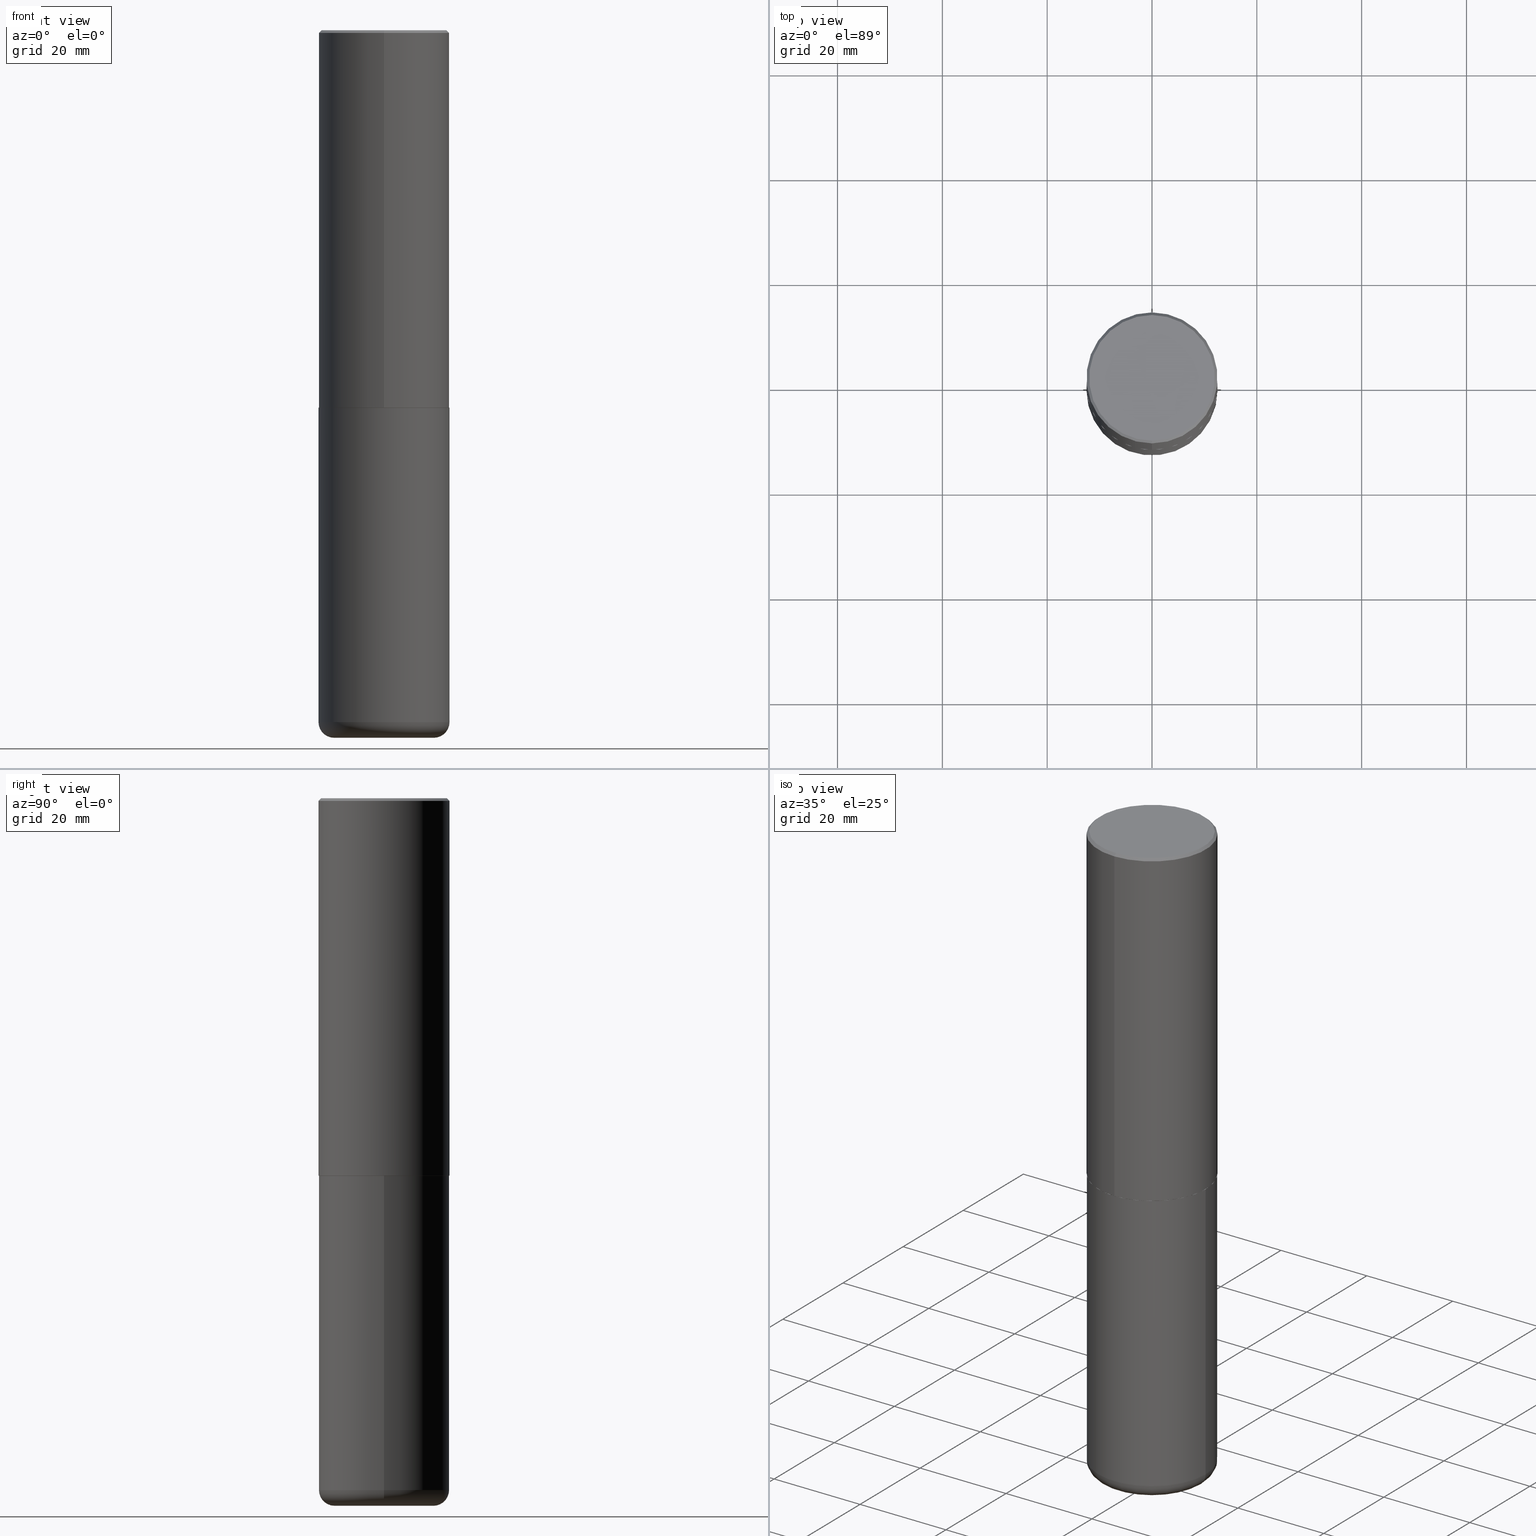
[diagram: canonical four-view strip — front | top / right | iso, engineering-drawing reading convention]
A machine part, canonical four-view strip (front | top / right | iso — engineering-drawing reading convention). The complete STEP part file that produces these views, byte-faithful:
ISO-10303-21;
HEADER;
FILE_DESCRIPTION (( 'STEP AP203' ),
    '1' );
FILE_NAME ('74564.STEP',
    '2024-03-06T15:30:06',
    ( '' ),
    ( '' ),
    'SwSTEP 2.0',
    'SolidWorks 2023',
    '' );
FILE_SCHEMA (( 'CONFIG_CONTROL_DESIGN' ));
ENDSEC;

DATA;
#1 = ORIENTED_EDGE ( 'NONE', *, *, #407, .F. ) ;
#2 = CALENDAR_DATE ( 2024, 6, 3 ) ;
#3 =( LENGTH_UNIT ( ) NAMED_UNIT ( * ) SI_UNIT ( $, .METRE. ) );
#4 = CARTESIAN_POINT ( 'NONE',  ( 1.299766670487400218E-28, -1.855722331595131973E-14, -5.315000000000000391 ) ) ;
#5 = ORIENTED_EDGE ( 'NONE', *, *, #294, .F. ) ;
#6 = APPROVAL_DATE_TIME ( #218, #363 ) ;
#7 = EDGE_CURVE ( 'NONE', #287, #387, #245, .T. ) ;
#8 = CIRCLE ( 'NONE', #59, 0.4911499999999999755 ) ;
#9 = ORIENTED_EDGE ( 'NONE', *, *, #207, .T. ) ;
#10 = CYLINDRICAL_SURFACE ( 'NONE', #364, 0.4921500000000000874 ) ;
#11 = ORIENTED_EDGE ( 'NONE', *, *, #142, .T. ) ;
#12 = APPLICATION_PROTOCOL_DEFINITION ( 'international standard', 'config_control_design', 1994, #57 ) ;
#13 = ORIENTED_EDGE ( 'NONE', *, *, #257, .T. ) ;
#14 = CARTESIAN_POINT ( 'NONE',  ( 0.000000000000000000, 0.000000000000000000, 0.000000000000000000 ) ) ;
#15 = APPROVAL ( #383, 'UNSPECIFIED' ) ;
#16 = FACE_OUTER_BOUND ( 'NONE', #389, .T. ) ;
#17 = AXIS2_PLACEMENT_3D ( 'NONE', #176, #316, #307 ) ;
#18 = ADVANCED_FACE ( 'NONE', ( #403 ), #228, .T. ) ;
#19 = CC_DESIGN_APPROVAL ( #15, ( #115 ) ) ;
#20 = EDGE_CURVE ( 'NONE', #265, #155, #319, .T. ) ;
#21 = DATE_TIME_ROLE ( 'creation_date' ) ;
#22 = DIRECTION ( 'NONE',  ( -2.445468806185136597E-29, 3.491481338843145583E-15, 1.000000000000000000 ) ) ;
#23 = DIRECTION ( 'NONE',  ( 1.000000000000000000, -6.982962677686265133E-15, 0.000000000000000000 ) ) ;
#24 = DIRECTION ( 'NONE',  ( -2.445229172240879899E-29, 3.491824508290438219E-15, 1.000000000000000000 ) ) ;
#25 = CIRCLE ( 'NONE', #215, 0.4911499999999999755 ) ;
#26 = APPROVAL_PERSON_ORGANIZATION ( #326, #161, #27 ) ;
#27 = APPROVAL_ROLE ( '' ) ;
#28 = PERSON_AND_ORGANIZATION ( #182, #290 ) ;
#29 = PRODUCT_RELATED_PRODUCT_CATEGORY ( 'detail', '', ( #214 ) ) ;
#30 = EDGE_LOOP ( 'NONE', ( #369, #360, #304, #394 ) ) ;
#31 = CONICAL_SURFACE ( 'NONE', #230, 0.4921499999999999764, 0.7853981633974479459 ) ;
#32 = ORIENTED_EDGE ( 'NONE', *, *, #329, .F. ) ;
#33 = APPROVAL_STATUS ( 'not_yet_approved' ) ;
#34 = VERTEX_POINT ( 'NONE', #179 ) ;
#35 = DIRECTION ( 'NONE',  ( 2.445229172240879899E-29, -3.491824508290438219E-15, -1.000000000000000000 ) ) ;
#36 = DIRECTION ( 'NONE',  ( -2.445468806185136597E-29, 3.491481338843145583E-15, 1.000000000000000000 ) ) ;
#37 = EDGE_LOOP ( 'NONE', ( #67, #71, #164, #213 ) ) ;
#38 = LINE ( 'NONE', #271, #398 ) ;
#39 = TOROIDAL_SURFACE ( 'NONE', #345, 0.3740499999999999381, 0.1181000000000000383 ) ;
#40 = VERTEX_POINT ( 'NONE', #343 ) ;
#41 = ORIENTED_EDGE ( 'NONE', *, *, #289, .T. ) ;
#42 = CARTESIAN_POINT ( 'NONE',  ( 6.931491134551223323E-29, -9.898274933650907147E-15, -2.834700000000000220 ) ) ;
#43 = APPLICATION_CONTEXT ( 'configuration controlled 3d designs of mechanical parts and assemblies' ) ;
#44 = EDGE_CURVE ( 'NONE', #387, #189, #46, .T. ) ;
#45 = AXIS2_PLACEMENT_3D ( 'NONE', #145, #412, #117 ) ;
#46 = LINE ( 'NONE', #203, #322 ) ;
#47 = FACE_OUTER_BOUND ( 'NONE', #223, .T. ) ;
#48 = DIRECTION ( 'NONE',  ( -6.982962677686265922E-15, -1.000000000000000000, 3.330506545156063891E-15 ) ) ;
#49 = CARTESIAN_POINT ( 'NONE',  ( 0.3740499999999999381, -2.075685655942249311E-14, -5.196900000000000297 ) ) ;
#50 = CARTESIAN_POINT ( 'NONE',  ( 3.366835455046433267E-15, 0.4721500000000000696, -1.814974901248707542E-15 ) ) ;
#51 = APPROVAL_ROLE ( '' ) ;
#52 = CARTESIAN_POINT ( 'NONE',  ( -0.3740499999999999381, -1.527369075431564084E-14, -5.315000000000000391 ) ) ;
#53 = AXIS2_PLACEMENT_3D ( 'NONE', #241, #24, #382 ) ;
#54 = AXIS2_PLACEMENT_3D ( 'NONE', #113, #242, #376 ) ;
#55 = EDGE_LOOP ( 'NONE', ( #295, #232, #196, #102 ) ) ;
#56 = ADVANCED_FACE ( 'NONE', ( #177 ), #372, .T. ) ;
#57 = APPLICATION_CONTEXT ( 'configuration controlled 3d designs of mechanical parts and assemblies' ) ;
#58 = CIRCLE ( 'NONE', #45, 0.4921500000000003094 ) ;
#59 = AXIS2_PLACEMENT_3D ( 'NONE', #85, #278, #172 ) ;
#60 =( GEOMETRIC_REPRESENTATION_CONTEXT ( 3 ) GLOBAL_UNCERTAINTY_ASSIGNED_CONTEXT ( ( #244 ) ) GLOBAL_UNIT_ASSIGNED_CONTEXT ( ( #154, #258, #66 ) ) REPRESENTATION_CONTEXT ( 'NONE', 'WORKASPACE' ) );
#61 = EDGE_LOOP ( 'NONE', ( #5, #107, #194, #193 ) ) ;
#62 = LINE ( 'NONE', #105, #160 ) ;
#63 = DIRECTION ( 'NONE',  ( -2.445468806185136597E-29, 3.491481338843145583E-15, 1.000000000000000000 ) ) ;
#64 = ADVANCED_FACE ( 'NONE', ( #16 ), #106, .T. ) ;
#65 = VERTEX_POINT ( 'NONE', #374 ) ;
#66 =( NAMED_UNIT ( * ) SI_UNIT ( $, .STERADIAN. ) SOLID_ANGLE_UNIT ( ) );
#67 = ORIENTED_EDGE ( 'NONE', *, *, #44, .F. ) ;
#68 = PERSON_AND_ORGANIZATION_ROLE ( 'design_owner' ) ;
#69 = AXIS2_PLACEMENT_3D ( 'NONE', #81, #22, #23 ) ;
#70 = LENGTH_MEASURE_WITH_UNIT ( LENGTH_MEASURE( 0.02539999999999999897 ), #3 );
#71 = ORIENTED_EDGE ( 'NONE', *, *, #221, .T. ) ;
#72 = EDGE_CURVE ( 'NONE', #259, #265, #409, .T. ) ;
#73 = ORIENTED_EDGE ( 'NONE', *, *, #7, .F. ) ;
#74 = DIRECTION ( 'NONE',  ( 1.000000000000000000, -6.982962677686265922E-15, 4.876176775795935793E-29 ) ) ;
#75 = AXIS2_PLACEMENT_3D ( 'NONE', #346, #186, #87 ) ;
#76 = CARTESIAN_POINT ( 'NONE',  ( 6.931491134551223323E-29, -9.898274933650907147E-15, -2.834700000000000220 ) ) ;
#77 = DIRECTION ( 'NONE',  ( -6.982962677686265922E-15, -1.000000000000000000, 3.337287582609300506E-15 ) ) ;
#78 = CARTESIAN_POINT ( 'NONE',  ( 0.4921499999999999764, -2.158154445165724138E-14, -5.196900000000000297 ) ) ;
#79 = CARTESIAN_POINT ( 'NONE',  ( 4.066659649933121937E-45, -5.807251931114062973E-31, -1.663099596593768543E-16 ) ) ;
#80 = CARTESIAN_POINT ( 'NONE',  ( -0.4921499999999999764, 3.496936074043332897E-15, -2.420853904668951509E-29 ) ) ;
#81 = CARTESIAN_POINT ( 'NONE',  ( 1.299766670487400218E-28, -1.855722331595131973E-14, -5.315000000000000391 ) ) ;
#82 = AXIS2_PLACEMENT_3D ( 'NONE', #338, #274, #48 ) ;
#83 = MANIFOLD_SOLID_BREP ( 'Body-Move/Copy2[1]', #210 ) ;
#84 = DIRECTION ( 'NONE',  ( -6.982962677686265922E-15, -1.000000000000000000, 3.337287582609300506E-15 ) ) ;
#85 = CARTESIAN_POINT ( 'NONE',  ( 6.931491134551223323E-29, -9.898274933650907147E-15, -2.834700000000000220 ) ) ;
#86 = PLANE ( 'NONE',  #246 ) ;
#87 = DIRECTION ( 'NONE',  ( 1.000000000000000000, -6.982962677686265922E-15, 0.000000000000000000 ) ) ;
#88 = PERSON_AND_ORGANIZATION_ROLE ( 'creator' ) ;
#89 = LINE ( 'NONE', #187, #251 ) ;
#90 = AXIS2_PLACEMENT_3D ( 'NONE', #185, #147, #375 ) ;
#91 = ADVANCED_FACE ( 'NONE', ( #249 ), #39, .T. ) ;
#92 = CARTESIAN_POINT ( 'NONE',  ( 1.299766670487400218E-28, -1.855722331595131973E-14, -5.315000000000000391 ) ) ;
#93 = EDGE_CURVE ( 'NONE', #94, #216, #276, .T. ) ;
#94 = VERTEX_POINT ( 'NONE', #406 ) ;
#95 = PLANE ( 'NONE',  #357 ) ;
#96 = ORIENTED_EDGE ( 'NONE', *, *, #204, .T. ) ;
#97 = COORDINATED_UNIVERSAL_TIME_OFFSET ( 5, 0, .BEHIND. ) ;
#98 = EDGE_CURVE ( 'NONE', #333, #40, #25, .T. ) ;
#99 = ORIENTED_EDGE ( 'NONE', *, *, #72, .T. ) ;
#100 = CARTESIAN_POINT ( 'NONE',  ( 3.436665081823296171E-15, 0.4921499999999999209, -0.02000000000000182535 ) ) ;
#101 = DIRECTION ( 'NONE',  ( -6.982962677686265922E-15, -1.000000000000000000, 3.495297233588267464E-15 ) ) ;
#102 = ORIENTED_EDGE ( 'NONE', *, *, #380, .F. ) ;
#103 = EDGE_CURVE ( 'NONE', #292, #327, #174, .T. ) ;
#104 = DIRECTION ( 'NONE',  ( 1.000000000000000000, 0.000000000000000000, 0.000000000000000000 ) ) ;
#105 = CARTESIAN_POINT ( 'NONE',  ( -3.436665081823296565E-15, -0.4921500000000000874, 1.718501431755139545E-15 ) ) ;
#106 = CONICAL_SURFACE ( 'NONE', #184, 0.4921499999999999764, 0.7853981633974479459 ) ;
#107 = ORIENTED_EDGE ( 'NONE', *, *, #20, .T. ) ;
#108 = DIRECTION ( 'NONE',  ( -6.982962677686266711E-15, -1.000000000000000000, 3.491481338843145583E-15 ) ) ;
#109 = DIRECTION ( 'NONE',  ( -2.445468806185136597E-29, 3.491481338843145583E-15, 1.000000000000000000 ) ) ;
#110 = AXIS2_PLACEMENT_3D ( 'NONE', #4, #63, #192 ) ;
#111 = CIRCLE ( 'NONE', #69, 0.3740499999999999381 ) ;
#112 = DIRECTION ( 'NONE',  ( 2.445229172240879899E-29, -3.491824508290438219E-15, -1.000000000000000000 ) ) ;
#113 = CARTESIAN_POINT ( 'NONE',  ( 3.297005828269570364E-15, 0.4721500000000000696, -1.731819921419018991E-15 ) ) ;
#114 = DIRECTION ( 'NONE',  ( -2.445229172240879899E-29, 3.491824508290438219E-15, 1.000000000000000000 ) ) ;
#115 = PRODUCT_DEFINITION_FORMATION_WITH_SPECIFIED_SOURCE ( 'ANY', '', #214, .NOT_KNOWN. ) ;
#116 = AXIS2_PLACEMENT_3D ( 'NONE', #149, #169, #339 ) ;
#117 = DIRECTION ( 'NONE',  ( -6.982962677686265922E-15, -1.000000000000000000, 3.330506545156063891E-15 ) ) ;
#118 = AXIS2_PLACEMENT_3D ( 'NONE', #243, #384, #381 ) ;
#119 = LOCAL_TIME ( 10, 30, 6.000000000000000000, #415 ) ;
#120 = DIRECTION ( 'NONE',  ( -1.000000000000000000, 7.105427357601001859E-15, 0.000000000000000000 ) ) ;
#121 = DIRECTION ( 'NONE',  ( -2.445229172240879899E-29, 3.491824508290438219E-15, 1.000000000000000000 ) ) ;
#122 = FACE_OUTER_BOUND ( 'NONE', #132, .T. ) ;
#123 = ORIENTED_EDGE ( 'NONE', *, *, #20, .F. ) ;
#124 = EDGE_CURVE ( 'NONE', #34, #65, #150, .T. ) ;
#125 = ORIENTED_EDGE ( 'NONE', *, *, #294, .T. ) ;
#126 = AXIS2_PLACEMENT_3D ( 'NONE', #76, #171, #206 ) ;
#127 = CC_DESIGN_APPROVAL ( #161, ( #315 ) ) ;
#128 = ORIENTED_EDGE ( 'NONE', *, *, #98, .T. ) ;
#129 = DIRECTION ( 'NONE',  ( -4.937700262165896205E-15, -0.7071067811867381980, 0.7071067811863568364 ) ) ;
#130 = DIRECTION ( 'NONE',  ( 1.000000000000000000, -6.982962677686265922E-15, 0.000000000000000000 ) ) ;
#131 = EDGE_CURVE ( 'NONE', #40, #287, #38, .T. ) ;
#132 = EDGE_LOOP ( 'NONE', ( #152, #323 ) ) ;
#133 = EDGE_LOOP ( 'NONE', ( #99, #125 ) ) ;
#134 = AXIS2_PLACEMENT_3D ( 'NONE', #310, #404, #77 ) ;
#135 = LINE ( 'NONE', #273, #282 ) ;
#136 = CARTESIAN_POINT ( 'NONE',  ( -0.4921499999999999764, -1.464794329579061349E-14, -5.196900000000000297 ) ) ;
#137 = CARTESIAN_POINT ( 'NONE',  ( -0.3740499999999999381, -1.548709426672329248E-14, -5.196900000000000297 ) ) ;
#138 = CARTESIAN_POINT ( 'NONE',  ( 4.890458344481786073E-31, -6.983649016580912824E-17, -0.02000000000000010797 ) ) ;
#139 = FACE_OUTER_BOUND ( 'NONE', #133, .T. ) ;
#140 = CC_DESIGN_PERSON_AND_ORGANIZATION_ASSIGNMENT ( #28, #88, ( #115 ) ) ;
#141 = ADVANCED_BREP_SHAPE_REPRESENTATION ( '74564', ( #83, #217, #378 ), #60 ) ;
#142 = EDGE_CURVE ( 'NONE', #94, #327, #355, .T. ) ;
#143 = APPROVAL_DATE_TIME ( #352, #15 ) ;
#144 = AXIS2_PLACEMENT_3D ( 'NONE', #402, #157, #197 ) ;
#145 = CARTESIAN_POINT ( 'NONE',  ( 6.929045905378983914E-29, -9.894783109142616722E-15, -2.833700000000000330 ) ) ;
#146 = COORDINATED_UNIVERSAL_TIME_OFFSET ( 5, 0, .BEHIND. ) ;
#147 = DIRECTION ( 'NONE',  ( -2.445468806185136597E-29, 3.491481338843145583E-15, 1.000000000000000000 ) ) ;
#148 = SECURITY_CLASSIFICATION_LEVEL ( 'unclassified' ) ;
#149 = CARTESIAN_POINT ( 'NONE',  ( 1.270885683886353718E-28, -1.814487936983394718E-14, -5.196900000000000297 ) ) ;
#150 = CIRCLE ( 'NONE', #75, 0.4921499999999999764 ) ;
#151 = CC_DESIGN_DATE_AND_TIME_ASSIGNMENT ( #344, #21, ( #281 ) ) ;
#152 = ORIENTED_EDGE ( 'NONE', *, *, #93, .F. ) ;
#153 = APPROVAL_ROLE ( '' ) ;
#154 =( CONVERSION_BASED_UNIT ( 'INCH', #70 ) LENGTH_UNIT ( ) NAMED_UNIT ( #212 ) );
#155 = VERTEX_POINT ( 'NONE', #159 ) ;
#156 = COORDINATED_UNIVERSAL_TIME_OFFSET ( 5, 0, .BEHIND. ) ;
#157 = DIRECTION ( 'NONE',  ( -2.445468806185136597E-29, 3.491481338843145583E-15, 1.000000000000000000 ) ) ;
#158 = ORIENTED_EDGE ( 'NONE', *, *, #124, .T. ) ;
#159 = CARTESIAN_POINT ( 'NONE',  ( -3.376394089603258262E-15, -0.4921500000000000319, -0.01999999999999838712 ) ) ;
#160 = VECTOR ( 'NONE', #368, 39.37007874015748143 ) ;
#161 = APPROVAL ( #321, 'UNSPECIFIED' ) ;
#162 = ORIENTED_EDGE ( 'NONE', *, *, #72, .F. ) ;
#163 = FACE_OUTER_BOUND ( 'NONE', #37, .T. ) ;
#164 = ORIENTED_EDGE ( 'NONE', *, *, #388, .T. ) ;
#165 = DIRECTION ( 'NONE',  ( -2.445468806185136877E-29, 3.491481338843145188E-15, 1.000000000000000000 ) ) ;
#166 = PRODUCT_DEFINITION_SHAPE ( 'NONE', 'NONE',  #281 ) ;
#167 = VECTOR ( 'NONE', #279, 39.37007874015748143 ) ;
#168 = LOCAL_TIME ( 10, 30, 6.000000000000000000, #146 ) ;
#169 = DIRECTION ( 'NONE',  ( -2.445468806185136597E-29, 3.491481338843145583E-15, 1.000000000000000000 ) ) ;
#170 = DIRECTION ( 'NONE',  ( 2.438088387897960049E-29, -3.491481338843145188E-15, -1.000000000000000000 ) ) ;
#171 = DIRECTION ( 'NONE',  ( -2.445229172240879899E-29, 3.491824508290438219E-15, 1.000000000000000000 ) ) ;
#172 = DIRECTION ( 'NONE',  ( -6.982962677686265922E-15, -1.000000000000000000, 3.337287582609300506E-15 ) ) ;
#173 = ADVANCED_FACE ( 'NONE', ( #163 ), #199, .T. ) ;
#174 = CIRCLE ( 'NONE', #118, 0.4921499999999999764 ) ;
#175 = LOCAL_TIME ( 10, 30, 6.000000000000000000, #97 ) ;
#176 = CARTESIAN_POINT ( 'NONE',  ( 0.000000000000000000, 0.000000000000000000, 0.000000000000000000 ) ) ;
#177 = FACE_OUTER_BOUND ( 'NONE', #227, .T. ) ;
#178 = ADVANCED_FACE ( 'NONE', ( #297 ), #10, .T. ) ;
#179 = CARTESIAN_POINT ( 'NONE',  ( -0.4921499999999999764, -1.052415468648297289E-14, -2.834700000000000220 ) ) ;
#180 = DATE_AND_TIME ( #283, #168 ) ;
#181 = CALENDAR_DATE ( 2024, 6, 3 ) ;
#182 = PERSON ( 'UNSPECIFIED', 'UNSPECIFIED', 'UNSPECIFIED', ('UNSPECIFIED'), ('UNSPECIFIED'), ('UNSPECIFIED') ) ;
#183 = DIRECTION ( 'NONE',  ( -1.000000000000000000, 6.982962677686265922E-15, -4.876176775795935793E-29 ) ) ;
#184 = AXIS2_PLACEMENT_3D ( 'NONE', #138, #112, #240 ) ;
#185 = CARTESIAN_POINT ( 'NONE',  ( 6.932170424893007423E-29, -9.897302151218665974E-15, -2.834700000000000220 ) ) ;
#186 = DIRECTION ( 'NONE',  ( -2.445468806185136597E-29, 3.491481338843145583E-15, 1.000000000000000000 ) ) ;
#187 = CARTESIAN_POINT ( 'NONE',  ( 3.436665081823296171E-15, 0.4921499999999999209, -0.02000000000000182535 ) ) ;
#188 = CC_DESIGN_APPROVAL ( #363, ( #281 ) ) ;
#189 = VERTEX_POINT ( 'NONE', #100 ) ;
#190 = FACE_OUTER_BOUND ( 'NONE', #30, .T. ) ;
#191 = CARTESIAN_POINT ( 'NONE',  ( 1.270885683886353718E-28, -1.814487936983394718E-14, -5.196900000000000297 ) ) ;
#192 = DIRECTION ( 'NONE',  ( 1.000000000000000000, -6.982962677686265133E-15, 0.000000000000000000 ) ) ;
#193 = ORIENTED_EDGE ( 'NONE', *, *, #289, .F. ) ;
#194 = ORIENTED_EDGE ( 'NONE', *, *, #407, .T. ) ;
#195 = APPROVAL_PERSON_ORGANIZATION ( #266, #363, #153 ) ;
#196 = ORIENTED_EDGE ( 'NONE', *, *, #257, .F. ) ;
#197 = DIRECTION ( 'NONE',  ( 1.000000000000000000, -6.982962677686265922E-15, 4.876176775795935793E-29 ) ) ;
#198 = DATE_TIME_ROLE ( 'classification_date' ) ;
#199 = CYLINDRICAL_SURFACE ( 'NONE', #17, 0.4921500000000000874 ) ;
#200 = DIRECTION ( 'NONE',  ( 4.937700262164545676E-15, 0.7071067811865447972, -0.7071067811865502373 ) ) ;
#201 = FACE_OUTER_BOUND ( 'NONE', #262, .T. ) ;
#202 = CC_DESIGN_SECURITY_CLASSIFICATION ( #315, ( #115 ) ) ;
#203 = CARTESIAN_POINT ( 'NONE',  ( 3.496936074043333291E-15, 0.4921500000000000874, -1.718501431755139545E-15 ) ) ;
#204 = EDGE_CURVE ( 'NONE', #333, #387, #225, .T. ) ;
#205 = VECTOR ( 'NONE', #397, 39.37007874015748143 ) ;
#206 = DIRECTION ( 'NONE',  ( -6.982962677686265922E-15, -1.000000000000000000, 3.337287582609300506E-15 ) ) ;
#207 = EDGE_CURVE ( 'NONE', #40, #333, #8, .T. ) ;
#208 = EDGE_LOOP ( 'NONE', ( #268, #414 ) ) ;
#209 = CARTESIAN_POINT ( 'NONE',  ( 3.493383360364602601E-15, 0.4911499999999900390, -2.834700000000001996 ) ) ;
#210 = CLOSED_SHELL ( 'NONE', ( #417, #337, #303, #393, #91, #269 ) ) ;
#211 = AXIS2_PLACEMENT_3D ( 'NONE', #42, #267, #229 ) ;
#212 = DIMENSIONAL_EXPONENTS ( 1.000000000000000000, 0.000000000000000000, 0.000000000000000000, 0.000000000000000000, 0.000000000000000000, 0.000000000000000000, 0.000000000000000000 ) ;
#213 = ORIENTED_EDGE ( 'NONE', *, *, #255, .F. ) ;
#214 = PRODUCT ( '74564', '74564', '', ( #299 ) ) ;
#215 = AXIS2_PLACEMENT_3D ( 'NONE', #342, #114, #84 ) ;
#216 = VERTEX_POINT ( 'NONE', #52 ) ;
#217 = MANIFOLD_SOLID_BREP ( 'Body-Move/Copy2[2]', #270 ) ;
#218 = DATE_AND_TIME ( #2, #175 ) ;
#219 = PERSON_AND_ORGANIZATION_ROLE ( 'creator' ) ;
#220 = CARTESIAN_POINT ( 'NONE',  ( 4.066659649933121937E-45, -5.807251931114062973E-31, -1.663099596593768543E-16 ) ) ;
#221 = EDGE_CURVE ( 'NONE', #387, #287, #58, .T. ) ;
#222 = EDGE_LOOP ( 'NONE', ( #32, #358, #11, #328 ) ) ;
#223 = EDGE_LOOP ( 'NONE', ( #13, #158 ) ) ;
#224 = PERSON_AND_ORGANIZATION ( #182, #290 ) ;
#225 = LINE ( 'NONE', #300, #205 ) ;
#226 = DIRECTION ( 'NONE',  ( -2.445468806185136597E-29, 3.491481338843145583E-15, 1.000000000000000000 ) ) ;
#227 = EDGE_LOOP ( 'NONE', ( #9, #96, #73, #256 ) ) ;
#228 = CONICAL_SURFACE ( 'NONE', #126, 0.4911499999999999755, 0.7853981633977213939 ) ;
#229 = DIRECTION ( 'NONE',  ( -6.982962677686265922E-15, -1.000000000000000000, 3.491824508290438613E-15 ) ) ;
#230 = AXIS2_PLACEMENT_3D ( 'NONE', #401, #35, #233 ) ;
#231 = CYLINDRICAL_SURFACE ( 'NONE', #144, 0.4921499999999999764 ) ;
#232 = ORIENTED_EDGE ( 'NONE', *, *, #234, .T. ) ;
#233 = DIRECTION ( 'NONE',  ( 6.982962677686265922E-15, 1.000000000000000000, -3.495297233588267464E-15 ) ) ;
#234 = EDGE_CURVE ( 'NONE', #292, #34, #320, .T. ) ;
#235 = CARTESIAN_POINT ( 'NONE',  ( 0.000000000000000000, 0.000000000000000000, 0.000000000000000000 ) ) ;
#236 = CIRCLE ( 'NONE', #53, 0.4921499999999999764 ) ;
#237 = CC_DESIGN_PERSON_AND_ORGANIZATION_ASSIGNMENT ( #261, #219, ( #281 ) ) ;
#238 = DESIGN_CONTEXT ( 'detailed design', #57, 'design' ) ;
#239 = PLANE ( 'NONE',  #54 ) ;
#240 = DIRECTION ( 'NONE',  ( 6.982962677686265922E-15, 1.000000000000000000, -3.495297233588267464E-15 ) ) ;
#241 = CARTESIAN_POINT ( 'NONE',  ( 4.890458344481786073E-31, -6.983649016580912824E-17, -0.02000000000000010797 ) ) ;
#242 = DIRECTION ( 'NONE',  ( 2.445229172240879339E-29, -3.491824508290438613E-15, -1.000000000000000000 ) ) ;
#243 = CARTESIAN_POINT ( 'NONE',  ( 1.270885683886353718E-28, -1.814487936983394718E-14, -5.196900000000000297 ) ) ;
#244 = UNCERTAINTY_MEASURE_WITH_UNIT (LENGTH_MEASURE( 1.000000000000000082E-05 ), #154, 'distance_accuracy_value', 'NONE');
#245 = CIRCLE ( 'NONE', #82, 0.4921500000000003094 ) ;
#246 = AXIS2_PLACEMENT_3D ( 'NONE', #347, #170, #183 ) ;
#247 = CC_DESIGN_PERSON_AND_ORGANIZATION_ASSIGNMENT ( #224, #68, ( #214 ) ) ;
#248 = DIRECTION ( 'NONE',  ( -2.445229172240879899E-29, 3.491824508290438219E-15, 1.000000000000000000 ) ) ;
#249 = FACE_OUTER_BOUND ( 'NONE', #222, .T. ) ;
#250 = PERSON_AND_ORGANIZATION ( #182, #290 ) ;
#251 = VECTOR ( 'NONE', #200, 39.37007874015748143 ) ;
#252 = ORIENTED_EDGE ( 'NONE', *, *, #255, .T. ) ;
#253 = APPLICATION_PROTOCOL_DEFINITION ( 'international standard', 'config_control_design', 1994, #43 ) ;
#254 = PERSON_AND_ORGANIZATION_ROLE ( 'classification_officer' ) ;
#255 = EDGE_CURVE ( 'NONE', #189, #155, #236, .T. ) ;
#256 = ORIENTED_EDGE ( 'NONE', *, *, #131, .F. ) ;
#257 = EDGE_CURVE ( 'NONE', #65, #34, #350, .T. ) ;
#258 =( NAMED_UNIT ( * ) PLANE_ANGLE_UNIT ( ) SI_UNIT ( $, .RADIAN. ) );
#259 = VERTEX_POINT ( 'NONE', #50 ) ;
#260 = AXIS2_PLACEMENT_3D ( 'NONE', #191, #36, #130 ) ;
#261 = PERSON_AND_ORGANIZATION ( #182, #290 ) ;
#262 = EDGE_LOOP ( 'NONE', ( #396, #366, #399, #349 ) ) ;
#263 = DIRECTION ( 'NONE',  ( -2.445229172240879899E-29, 3.491824508290438219E-15, 1.000000000000000000 ) ) ;
#264 = FACE_OUTER_BOUND ( 'NONE', #208, .T. ) ;
#265 = VERTEX_POINT ( 'NONE', #413 ) ;
#266 = PERSON_AND_ORGANIZATION ( #182, #290 ) ;
#267 = DIRECTION ( 'NONE',  ( -2.445229172240879339E-29, 3.491824508290438613E-15, 1.000000000000000000 ) ) ;
#268 = ORIENTED_EDGE ( 'NONE', *, *, #207, .F. ) ;
#269 = ADVANCED_FACE ( 'NONE', ( #122 ), #95, .T. ) ;
#270 = CLOSED_SHELL ( 'NONE', ( #56, #178, #405, #64, #173, #18, #367, #309 ) ) ;
#271 = CARTESIAN_POINT ( 'NONE',  ( -3.429682119145539948E-15, -0.4911500000000098565, -2.834699999999998443 ) ) ;
#272 = FACE_OUTER_BOUND ( 'NONE', #55, .T. ) ;
#273 = CARTESIAN_POINT ( 'NONE',  ( 0.4921499999999999764, -3.436665081823295777E-15, 2.399810400207969603E-29 ) ) ;
#274 = DIRECTION ( 'NONE',  ( -2.445229172240879899E-29, 3.491824508290438219E-15, 1.000000000000000000 ) ) ;
#275 = DATE_AND_TIME ( #311, #119 ) ;
#276 = CIRCLE ( 'NONE', #110, 0.3740499999999999381 ) ;
#277 = CIRCLE ( 'NONE', #351, 0.1181000000000000383 ) ;
#278 = DIRECTION ( 'NONE',  ( -2.445229172240879899E-29, 3.491824508290438219E-15, 1.000000000000000000 ) ) ;
#279 = DIRECTION ( 'NONE',  ( -4.851104656540961908E-15, -0.7071067811865496822, -0.7071067811865453523 ) ) ;
#280 = DIRECTION ( 'NONE',  ( -6.982962677686264344E-15, -1.000000000000000000, 3.491824508290437824E-15 ) ) ;
#281 = PRODUCT_DEFINITION ( 'UNKNOWN', '', #115, #238 ) ;
#282 = VECTOR ( 'NONE', #165, 39.37007874015748143 ) ;
#283 = CALENDAR_DATE ( 2024, 6, 3 ) ;
#284 = CC_DESIGN_PERSON_AND_ORGANIZATION_ASSIGNMENT ( #411, #288, ( #115 ) ) ;
#285 = DIRECTION ( 'NONE',  ( 2.438088387897960049E-29, -3.491481338843145188E-15, -1.000000000000000000 ) ) ;
#286 = APPROVAL_DATE_TIME ( #180, #161 ) ;
#287 = VERTEX_POINT ( 'NONE', #325 ) ;
#288 = PERSON_AND_ORGANIZATION_ROLE ( 'design_supplier' ) ;
#289 = EDGE_CURVE ( 'NONE', #259, #189, #89, .T. ) ;
#290 = ORGANIZATION ( 'UNSPECIFIED', 'UNSPECIFIED', '' ) ;
#291 = ORIENTED_EDGE ( 'NONE', *, *, #204, .F. ) ;
#292 = VERTEX_POINT ( 'NONE', #136 ) ;
#293 = ORIENTED_EDGE ( 'NONE', *, *, #7, .T. ) ;
#294 = EDGE_CURVE ( 'NONE', #265, #259, #373, .T. ) ;
#295 = ORIENTED_EDGE ( 'NONE', *, *, #408, .T. ) ;
#296 = TOROIDAL_SURFACE ( 'NONE', #116, 0.3740499999999999381, 0.1181000000000000383 ) ;
#297 = FACE_OUTER_BOUND ( 'NONE', #362, .T. ) ;
#298 = ORIENTED_EDGE ( 'NONE', *, *, #221, .F. ) ;
#299 = MECHANICAL_CONTEXT ( 'NONE', #43, 'mechanical' ) ;
#300 = CARTESIAN_POINT ( 'NONE',  ( 3.489830646685800520E-15, 0.4911499999999900390, -2.834700000000001996 ) ) ;
#301 = CALENDAR_DATE ( 2024, 6, 3 ) ;
#302 = CC_DESIGN_DATE_AND_TIME_ASSIGNMENT ( #275, #198, ( #315 ) ) ;
#303 = ADVANCED_FACE ( 'NONE', ( #47 ), #86, .F. ) ;
#304 = ORIENTED_EDGE ( 'NONE', *, *, #380, .T. ) ;
#305 = PLANE ( 'NONE',  #211 ) ;
#306 = VECTOR ( 'NONE', #314, 39.37007874015748143 ) ;
#307 = DIRECTION ( 'NONE',  ( -6.982962677686265922E-15, -1.000000000000000000, 3.491824508290438219E-15 ) ) ;
#308 = APPROVAL_PERSON_ORGANIZATION ( #250, #15, #51 ) ;
#309 = ADVANCED_FACE ( 'NONE', ( #139 ), #239, .F. ) ;
#310 = CARTESIAN_POINT ( 'NONE',  ( 6.931491134551223323E-29, -9.898274933650907147E-15, -2.834700000000000220 ) ) ;
#311 = CALENDAR_DATE ( 2024, 6, 3 ) ;
#312 = DIRECTION ( 'NONE',  ( 7.105427357601001859E-15, 1.000000000000000000, -3.491481338843145583E-15 ) ) ;
#313 = CARTESIAN_POINT ( 'NONE',  ( -3.376394089603258262E-15, -0.4921500000000000319, -0.01999999999999838712 ) ) ;
#314 = DIRECTION ( 'NONE',  ( -2.445468806185136877E-29, 3.491481338843145188E-15, 1.000000000000000000 ) ) ;
#315 = SECURITY_CLASSIFICATION ( '', '', #148 ) ;
#316 = DIRECTION ( 'NONE',  ( -2.445229172240879899E-29, 3.491824508290438219E-15, 1.000000000000000000 ) ) ;
#317 = DIRECTION ( 'NONE',  ( -2.445229172240879899E-29, 3.491824508290438219E-15, 1.000000000000000000 ) ) ;
#318 = COORDINATED_UNIVERSAL_TIME_OFFSET ( 5, 0, .BEHIND. ) ;
#319 = LINE ( 'NONE', #313, #167 ) ;
#320 = LINE ( 'NONE', #80, #306 ) ;
#321 = APPROVAL_STATUS ( 'not_yet_approved' ) ;
#322 = VECTOR ( 'NONE', #341, 39.37007874015748143 ) ;
#323 = ORIENTED_EDGE ( 'NONE', *, *, #324, .F. ) ;
#324 = EDGE_CURVE ( 'NONE', #216, #94, #111, .T. ) ;
#325 = CARTESIAN_POINT ( 'NONE',  ( -3.436665081823228329E-15, -0.4921500000000101904, -2.833699999999998997 ) ) ;
#326 = PERSON_AND_ORGANIZATION ( #182, #290 ) ;
#327 = VERTEX_POINT ( 'NONE', #78 ) ;
#328 = ORIENTED_EDGE ( 'NONE', *, *, #103, .F. ) ;
#329 = EDGE_CURVE ( 'NONE', #216, #292, #277, .T. ) ;
#330 = CARTESIAN_POINT ( 'NONE',  ( 3.496936074043369184E-15, 0.4921499999999904285, -2.833700000000002106 ) ) ;
#331 = EDGE_LOOP ( 'NONE', ( #291, #128, #354, #298 ) ) ;
#332 = CARTESIAN_POINT ( 'NONE',  ( 1.270885683886353718E-28, -1.814487936983394718E-14, -5.196900000000000297 ) ) ;
#333 = VERTEX_POINT ( 'NONE', #209 ) ;
#334 = CIRCLE ( 'NONE', #400, 0.4921499999999999764 ) ;
#335 = DIRECTION ( 'NONE',  ( 0.000000000000000000, 0.000000000000000000, 1.000000000000000000 ) ) ;
#336 = CYLINDRICAL_SURFACE ( 'NONE', #340, 0.4921499999999999764 ) ;
#337 = ADVANCED_FACE ( 'NONE', ( #201 ), #296, .T. ) ;
#338 = CARTESIAN_POINT ( 'NONE',  ( 6.929045905378983914E-29, -9.894783109142616722E-15, -2.833700000000000330 ) ) ;
#339 = DIRECTION ( 'NONE',  ( 1.000000000000000000, -6.982962677686266711E-15, 4.883557194083112340E-29 ) ) ;
#340 = AXIS2_PLACEMENT_3D ( 'NONE', #14, #109, #74 ) ;
#341 = DIRECTION ( 'NONE',  ( -2.445229172240879899E-29, 3.491824508290438613E-15, 1.000000000000000000 ) ) ;
#342 = CARTESIAN_POINT ( 'NONE',  ( 6.931491134551223323E-29, -9.898274933650907147E-15, -2.834700000000000220 ) ) ;
#343 = CARTESIAN_POINT ( 'NONE',  ( -3.429682119145539948E-15, -0.4911500000000098565, -2.834699999999998443 ) ) ;
#344 = DATE_AND_TIME ( #301, #356 ) ;
#345 = AXIS2_PLACEMENT_3D ( 'NONE', #332, #226, #359 ) ;
#346 = CARTESIAN_POINT ( 'NONE',  ( 6.932170424893007423E-29, -9.897302151218665974E-15, -2.834700000000000220 ) ) ;
#347 = CARTESIAN_POINT ( 'NONE',  ( 6.932170424893007423E-29, -9.897302151218665974E-15, -2.834700000000000220 ) ) ;
#348 = CC_DESIGN_PERSON_AND_ORGANIZATION_ASSIGNMENT ( #379, #254, ( #315 ) ) ;
#349 = ORIENTED_EDGE ( 'NONE', *, *, #142, .F. ) ;
#350 = CIRCLE ( 'NONE', #90, 0.4921499999999999764 ) ;
#351 = AXIS2_PLACEMENT_3D ( 'NONE', #137, #312, #120 ) ;
#352 = DATE_AND_TIME ( #181, #390 ) ;
#353 = DIRECTION ( 'NONE',  ( -6.982962677686264344E-15, -1.000000000000000000, 3.491824508290437824E-15 ) ) ;
#354 = ORIENTED_EDGE ( 'NONE', *, *, #131, .T. ) ;
#355 = CIRCLE ( 'NONE', #386, 0.1181000000000000383 ) ;
#356 = LOCAL_TIME ( 10, 30, 6.000000000000000000, #156 ) ;
#357 = AXIS2_PLACEMENT_3D ( 'NONE', #92, #285, #385 ) ;
#358 = ORIENTED_EDGE ( 'NONE', *, *, #324, .T. ) ;
#359 = DIRECTION ( 'NONE',  ( 1.000000000000000000, -6.982962677686266711E-15, 4.883557194083112340E-29 ) ) ;
#360 = ORIENTED_EDGE ( 'NONE', *, *, #103, .T. ) ;
#361 = CARTESIAN_POINT ( 'NONE',  ( 4.890458344481786073E-31, -6.983649016580912824E-17, -0.02000000000000010797 ) ) ;
#362 = EDGE_LOOP ( 'NONE', ( #293, #391, #1, #418 ) ) ;
#363 = APPROVAL ( #33, 'UNSPECIFIED' ) ;
#364 = AXIS2_PLACEMENT_3D ( 'NONE', #235, #263, #371 ) ;
#365 = SHAPE_DEFINITION_REPRESENTATION ( #166, #141 ) ;
#366 = ORIENTED_EDGE ( 'NONE', *, *, #329, .T. ) ;
#367 = ADVANCED_FACE ( 'NONE', ( #264 ), #305, .F. ) ;
#368 = DIRECTION ( 'NONE',  ( -2.445229172240879899E-29, 3.491824508290438613E-15, 1.000000000000000000 ) ) ;
#369 = ORIENTED_EDGE ( 'NONE', *, *, #234, .F. ) ;
#370 = DIRECTION ( 'NONE',  ( 1.000000000000000000, -6.982962677686270655E-15, 0.000000000000000000 ) ) ;
#371 = DIRECTION ( 'NONE',  ( -6.982962677686265922E-15, -1.000000000000000000, 3.491824508290438219E-15 ) ) ;
#372 = CONICAL_SURFACE ( 'NONE', #134, 0.4911499999999999755, 0.7853981633977213939 ) ;
#373 = CIRCLE ( 'NONE', #416, 0.4721500000000000696 ) ;
#374 = CARTESIAN_POINT ( 'NONE',  ( 0.4921499999999999764, -1.333396723304196175E-14, -2.834700000000000220 ) ) ;
#375 = DIRECTION ( 'NONE',  ( 1.000000000000000000, -6.982962677686265922E-15, 0.000000000000000000 ) ) ;
#376 = DIRECTION ( 'NONE',  ( 6.982962677686265922E-15, 1.000000000000000000, -3.491824508290438613E-15 ) ) ;
#377 = AXIS2_PLACEMENT_3D ( 'NONE', #79, #317, #353 ) ;
#378 = AXIS2_PLACEMENT_3D ( 'NONE', #395, #335, #104 ) ;
#379 = PERSON_AND_ORGANIZATION ( #182, #290 ) ;
#380 = EDGE_CURVE ( 'NONE', #327, #65, #135, .T. ) ;
#381 = DIRECTION ( 'NONE',  ( 1.000000000000000000, -6.982962677686265922E-15, 0.000000000000000000 ) ) ;
#382 = DIRECTION ( 'NONE',  ( -6.982962677686265922E-15, -1.000000000000000000, 3.495297233588267464E-15 ) ) ;
#383 = APPROVAL_STATUS ( 'not_yet_approved' ) ;
#384 = DIRECTION ( 'NONE',  ( -2.445468806185136597E-29, 3.491481338843145583E-15, 1.000000000000000000 ) ) ;
#385 = DIRECTION ( 'NONE',  ( -1.000000000000000000, 6.982962677686265922E-15, -4.876176775795935793E-29 ) ) ;
#386 = AXIS2_PLACEMENT_3D ( 'NONE', #49, #108, #370 ) ;
#387 = VERTEX_POINT ( 'NONE', #330 ) ;
#388 = EDGE_CURVE ( 'NONE', #287, #155, #62, .T. ) ;
#389 = EDGE_LOOP ( 'NONE', ( #123, #162, #41, #252 ) ) ;
#390 = LOCAL_TIME ( 10, 30, 6.000000000000000000, #318 ) ;
#391 = ORIENTED_EDGE ( 'NONE', *, *, #44, .T. ) ;
#392 = FACE_OUTER_BOUND ( 'NONE', #61, .T. ) ;
#393 = ADVANCED_FACE ( 'NONE', ( #190 ), #336, .T. ) ;
#394 = ORIENTED_EDGE ( 'NONE', *, *, #124, .F. ) ;
#395 = CARTESIAN_POINT ( 'NONE',  ( 0.000000000000000000, 0.000000000000000000, 0.000000000000000000 ) ) ;
#396 = ORIENTED_EDGE ( 'NONE', *, *, #93, .T. ) ;
#397 = DIRECTION ( 'NONE',  ( 5.024295867789434219E-15, 0.7071067811867430830, 0.7071067811863519514 ) ) ;
#398 = VECTOR ( 'NONE', #129, 39.37007874015748143 ) ;
#399 = ORIENTED_EDGE ( 'NONE', *, *, #408, .F. ) ;
#400 = AXIS2_PLACEMENT_3D ( 'NONE', #361, #248, #101 ) ;
#401 = CARTESIAN_POINT ( 'NONE',  ( 4.890458344481786073E-31, -6.983649016580912824E-17, -0.02000000000000010797 ) ) ;
#402 = CARTESIAN_POINT ( 'NONE',  ( 0.000000000000000000, 0.000000000000000000, 0.000000000000000000 ) ) ;
#403 = FACE_OUTER_BOUND ( 'NONE', #331, .T. ) ;
#404 = DIRECTION ( 'NONE',  ( -2.445229172240879899E-29, 3.491824508290438219E-15, 1.000000000000000000 ) ) ;
#405 = ADVANCED_FACE ( 'NONE', ( #392 ), #31, .T. ) ;
#406 = CARTESIAN_POINT ( 'NONE',  ( 0.3740499999999999381, -2.116920050553986882E-14, -5.315000000000000391 ) ) ;
#407 = EDGE_CURVE ( 'NONE', #155, #189, #334, .T. ) ;
#408 = EDGE_CURVE ( 'NONE', #327, #292, #410, .T. ) ;
#409 = CIRCLE ( 'NONE', #377, 0.4721500000000000696 ) ;
#410 = CIRCLE ( 'NONE', #260, 0.4921499999999999764 ) ;
#411 = PERSON_AND_ORGANIZATION ( #182, #290 ) ;
#412 = DIRECTION ( 'NONE',  ( -2.445229172240879899E-29, 3.491824508290438219E-15, 1.000000000000000000 ) ) ;
#413 = CARTESIAN_POINT ( 'NONE',  ( -3.307789109625543325E-15, -0.4721500000000000696, 1.482354981929953537E-15 ) ) ;
#414 = ORIENTED_EDGE ( 'NONE', *, *, #98, .F. ) ;
#415 = COORDINATED_UNIVERSAL_TIME_OFFSET ( 5, 0, .BEHIND. ) ;
#416 = AXIS2_PLACEMENT_3D ( 'NONE', #220, #121, #280 ) ;
#417 = ADVANCED_FACE ( 'NONE', ( #272 ), #231, .T. ) ;
#418 = ORIENTED_EDGE ( 'NONE', *, *, #388, .F. ) ;
ENDSEC;
END-ISO-10303-21;
